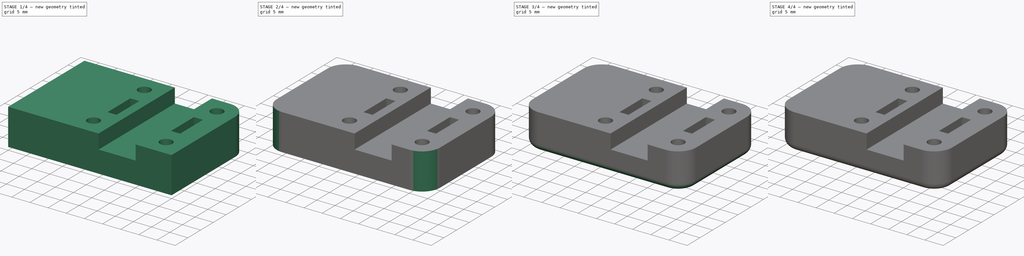
[diagram: build sequence overview — one tinted view per stage of 4, left to right]
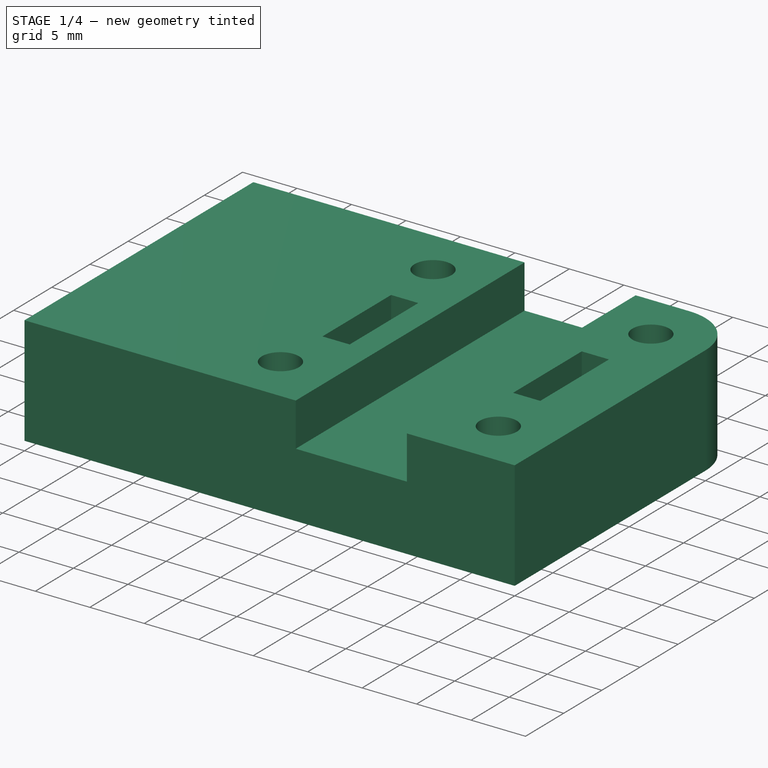
[diagram: stage 1 of 4 — iso view after this stage's code; geometry added in this stage tinted green]
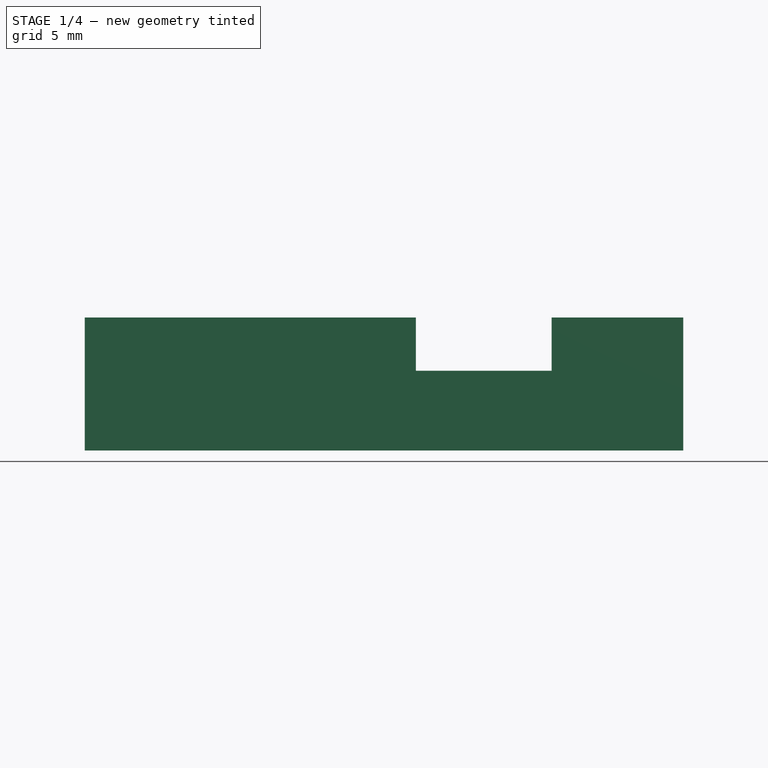
[diagram: stage 1 of 4 — front view after this stage's code; geometry added in this stage tinted green]
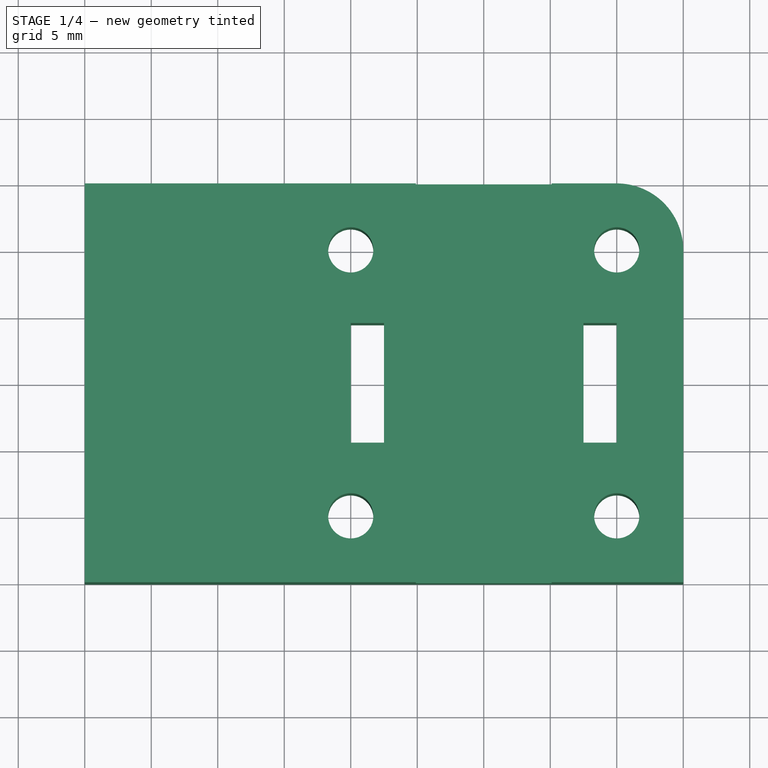
[diagram: stage 1 of 4 — top view after this stage's code; geometry added in this stage tinted green]
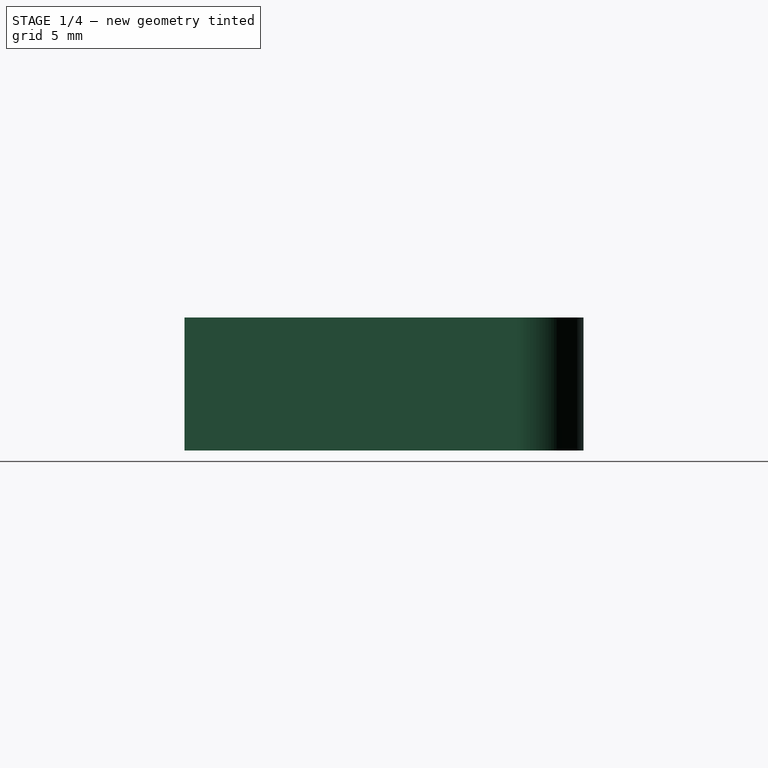
[diagram: stage 1 of 4 — right view after this stage's code; geometry added in this stage tinted green]
FCSTD DOCUMENT  (FreeCAD 0.16R6712 (Git))
Label: BatteryMountV2
License: All rights reserved
LicenseURL: http://en.wikipedia.org/wiki/All_rights_reserved
objects: PartDesign::Fillet×5, PartDesign::Chamfer×4, Sketcher::SketchObject×3, PartDesign::Pocket×2, PartDesign::Pad×1
note: 18 computed .brp shape members not serialized (recipe doc carries the construction recipe); baked Part::Feature solids carry a one-line shape summary decoded from their .brp

FEATURE [Sketcher::SketchObject] Sketch
  sketch-geometry (30):
    g0: LineSegment StartX=-30 StartY=15 StartZ=0 EndX=15 EndY=15 EndZ=0
    g1: LineSegment StartX=15 StartY=15 StartZ=0 EndX=15 EndY=-15 EndZ=0
    g2: LineSegment StartX=15 StartY=-15 StartZ=0 EndX=-30 EndY=-15 EndZ=0
    g3: LineSegment StartX=-30 StartY=-15 StartZ=0 EndX=-30 EndY=15 EndZ=0
    g4: GeomPoint [constr] X=-60.7763 Y=8.62422 Z=0
    g5: GeomPoint [constr] X=-30 Y=0 Z=0
    g6: Circle CenterX=-10 CenterY=10 CenterZ=0 NormalX=0 NormalY=0 NormalZ=1 Radius=1.7
    g7: LineSegment [constr] StartX=-5.1 StartY=15 StartZ=0 EndX=-5.1 EndY=-15 EndZ=0
    g8: LineSegment [constr] StartX=5.1 StartY=15 StartZ=0 EndX=5.1 EndY=-15 EndZ=0
    g9: LineSegment [constr] StartX=-10 StartY=10 StartZ=0 EndX=10 EndY=10 EndZ=0
    g10: LineSegment [constr] StartX=10 StartY=10 StartZ=0 EndX=10 EndY=-10 EndZ=0
    g11: LineSegment [constr] StartX=10 StartY=-10 StartZ=0 EndX=-10 EndY=-10 EndZ=0
    g12: LineSegment [constr] StartX=-10 StartY=-10 StartZ=0 EndX=-10 EndY=10 EndZ=0
    g13: Circle CenterX=-10 CenterY=-10 CenterZ=0 NormalX=0 NormalY=0 NormalZ=1 Radius=1.7
    g14: Circle CenterX=10 CenterY=10 CenterZ=0 NormalX=0 NormalY=0 NormalZ=1 Radius=1.7
    g15: Circle CenterX=10 CenterY=-10 CenterZ=0 NormalX=0 NormalY=0 NormalZ=1 Radius=1.7
    g16: GeomPoint [constr] X=0 Y=10 Z=0
    g17: GeomPoint [constr] X=10 Y=0 Z=0
    g18: LineSegment StartX=-10 StartY=4.5 StartZ=0 EndX=-7.5 EndY=4.5 EndZ=0
    g19: LineSegment StartX=-7.5 StartY=4.5 StartZ=0 EndX=-7.5 EndY=-4.5 EndZ=0
    g20: LineSegment StartX=-7.5 StartY=-4.5 StartZ=0 EndX=-10 EndY=-4.5 EndZ=0
    g21: LineSegment StartX=-10 StartY=-4.5 StartZ=0 EndX=-10 EndY=4.5 EndZ=0
    g22: GeomPoint [constr] X=-7.5 Y=0 Z=0
    g23: LineSegment [constr] StartX=-7.5 StartY=4.5 StartZ=0 EndX=7.5 EndY=4.5 EndZ=0
    g24: LineSegment StartX=7.5 StartY=4.5 StartZ=0 EndX=10 EndY=4.5 EndZ=0
    g25: LineSegment StartX=10 StartY=4.5 StartZ=0 EndX=10 EndY=-4.5 EndZ=0
    g26: LineSegment StartX=10 StartY=-4.5 StartZ=0 EndX=7.5 EndY=-4.5 EndZ=0
    g27: LineSegment StartX=7.5 StartY=-4.5 StartZ=0 EndX=7.5 EndY=4.5 EndZ=0
    g28: LineSegment [constr] StartX=10 StartY=10 StartZ=0 EndX=15 EndY=15 EndZ=0
    g29: GeomPoint [constr] X=0 Y=4.5 Z=0
  constraints (77):
    c: Coincident(g0,g1)
    c: Coincident(g1,g2)
    c: Coincident(g2,g3)
    c: Coincident(g3,g0)
    c: Horizontal(g0)
    c: Horizontal(g2)
    c: Vertical(g1)
    c: Vertical(g3)
    c: PointOnObject(g5,g3)
    c: Symmetric(g0,g2,g5)
    c: PointOnObject(g5,g-1)
    c: PointOnObject(g7,g0)
    c: PointOnObject(g7,g2)
    c: Vertical(g7)
    c: PointOnObject(g8,g0)
    c: PointOnObject(g8,g2)
    c: Vertical(g8)
    c: DistanceX(g7,g8) = 10.2
    c: Coincident(g9,g10)
    c: Coincident(g10,g11)
    c: Coincident(g11,g12)
    c: Coincident(g12,g9)
    c: Horizontal(g9)
    c: Horizontal(g11)
    c: Vertical(g10)
    c: Vertical(g12)
    c: Coincident(g9,g6)
    c: DistanceX(g9,g9) = 20
    c: DistanceY(g10,g10) = 20
    c: Coincident(g13,g11)
    c: Coincident(g14,g9)
    c: Coincident(g15,g10)
    c: Radius(g6) = 1.7
    c: Equal(g6,g14)
    c: Equal(g14,g15)
    c: Equal(g15,g13)
    c: PointOnObject(g16,g9)
    c: Symmetric(g9,g6,g16)
    c: PointOnObject(g16,g-2)
    c: PointOnObject(g17,g10)
    c: Symmetric(g9,g10,g17)
    c: PointOnObject(g17,g-1)
    c: Coincident(g18,g19)
    c: Coincident(g19,g20)
    c: Coincident(g20,g21)
    c: Coincident(g21,g18)
    c: Horizontal(g18)
    c: Horizontal(g20)
    c: Vertical(g19)
    c: Vertical(g21)
    c: DistanceX(g18,g18) = 2.5
    c: DistanceY(g21,g21) = 9
    c: PointOnObject(g22,g19)
    c: Symmetric(g18,g19,g22)
    c: PointOnObject(g22,g-1)
    c: Horizontal(g23)
    c: Coincident(g23,g18)
    c: Coincident(g24,g25)
    c: Coincident(g25,g26)
    c: Coincident(g26,g27)
    c: Coincident(g27,g24)
    c: Horizontal(g24)
    c: Horizontal(g26)
    c: Vertical(g25)
    c: Vertical(g27)
    c: Coincident(g24,g23)
    c: Equal(g24,g18)
    c: Equal(g25,g21)
    c: DistanceY(g1,g1) = 30
    c: Coincident(g28,g9)
    c: Angle(g28) = 0.785398
    c: Coincident(g28,g0)
    c: DistanceX(g2,g11) = 20
    c: PointOnObject(g29,g23)
    c: Symmetric(g18,g23,g29)
    c: PointOnObject(g29,g-2)
    c: DistanceX(g23,g23) = 15
FEATURE [PartDesign::Pad] Pad
  Length = 10
  Length2 = 100
  Sketch = -> Sketch
  Type = 0
FEATURE [Sketcher::SketchObject] Sketch001
  Placement = pos=(0,0,10) rot=(0,0,1;0rad)
  Support = -> Pad [Face18]
  sketch-geometry (6):
    g0: LineSegment StartX=-5.1 StartY=15 StartZ=0 EndX=5.1 EndY=15 EndZ=0
    g1: LineSegment StartX=5.1 StartY=15 StartZ=0 EndX=5.1 EndY=-15 EndZ=0
    g2: LineSegment StartX=5.1 StartY=-15 StartZ=0 EndX=-5.1 EndY=-15 EndZ=0
    g3: LineSegment StartX=-5.1 StartY=-15 StartZ=0 EndX=-5.1 EndY=15 EndZ=0
    g4: GeomPoint [constr] X=-5.1 Y=0 Z=0
    g5: GeomPoint [constr] X=0 Y=-15 Z=0
  constraints (16):
    c: Coincident(g0,g1)
    c: Coincident(g1,g2)
    c: Coincident(g2,g3)
    c: Coincident(g3,g0)
    c: Horizontal(g0)
    c: Horizontal(g2)
    c: Vertical(g1)
    c: Vertical(g3)
    c: PointOnObject(g4,g3)
    c: Symmetric(g0,g2,g4)
    c: PointOnObject(g4,g-1)
    c: PointOnObject(g5,g2)
    c: Symmetric(g2,g1,g5)
    c: PointOnObject(g5,g-2)
    c: DistanceY(g1,g1) = 30
    c: DistanceX(g0,g0) = 10.2
FEATURE [PartDesign::Pocket] Pocket
  Length = 4
  Sketch = -> Sketch001
  Type = 0
FEATURE [PartDesign::Fillet] Fillet
  Base = -> Pocket [Edge2]
  Radius = 5
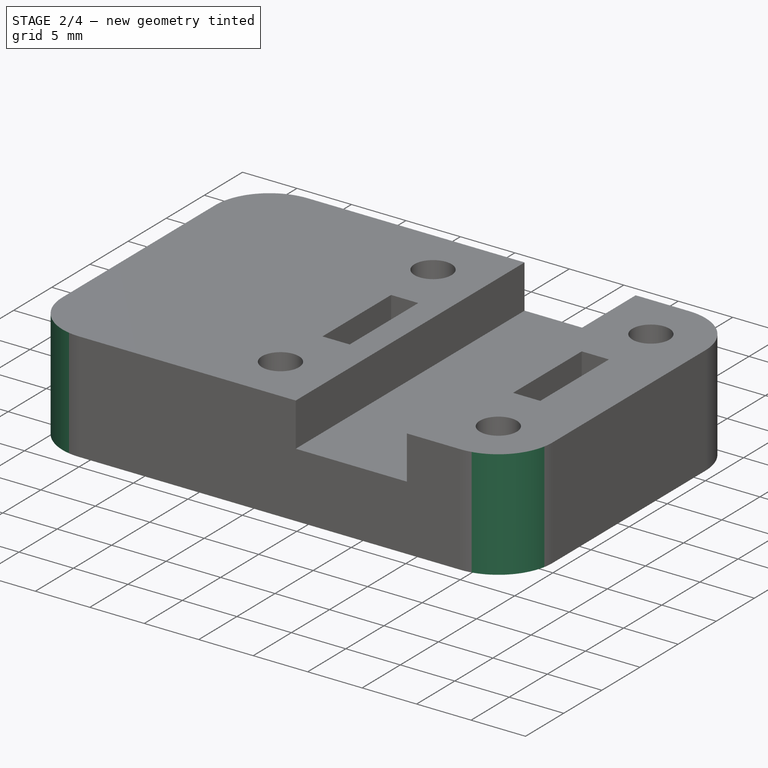
[diagram: stage 2 of 4 — iso view after this stage's code; geometry added in this stage tinted green]
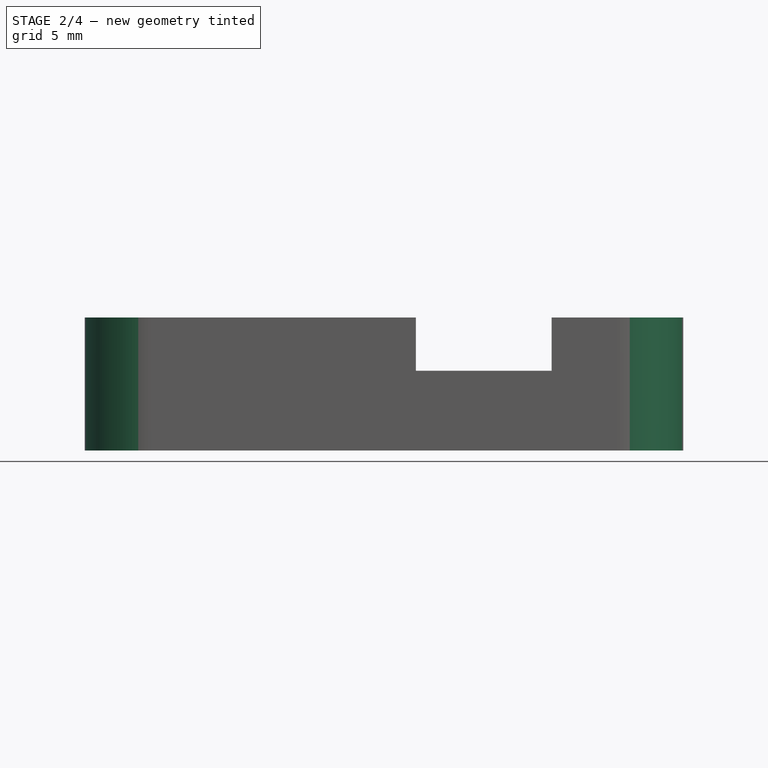
[diagram: stage 2 of 4 — front view after this stage's code; geometry added in this stage tinted green]
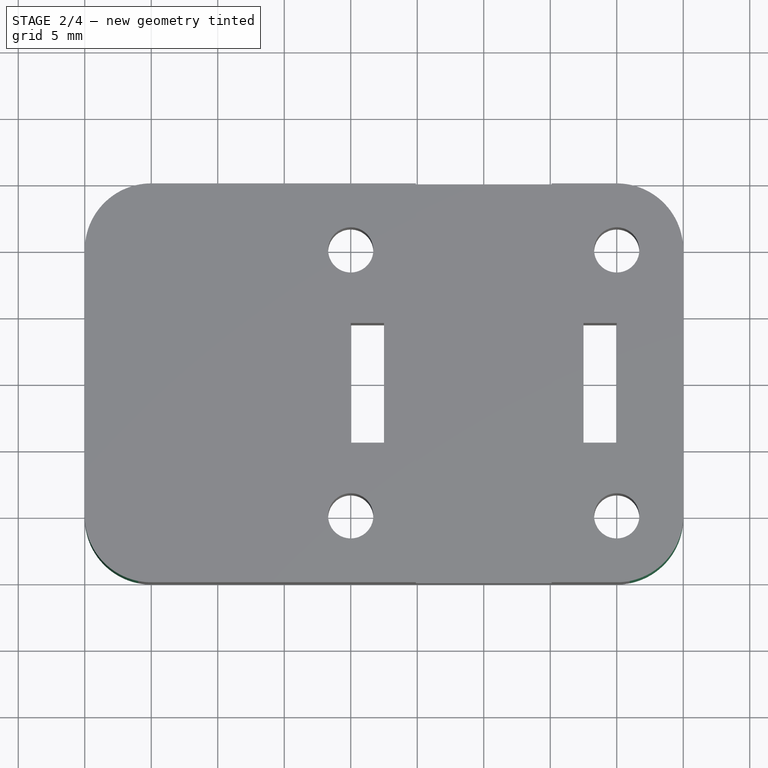
[diagram: stage 2 of 4 — top view after this stage's code; geometry added in this stage tinted green]
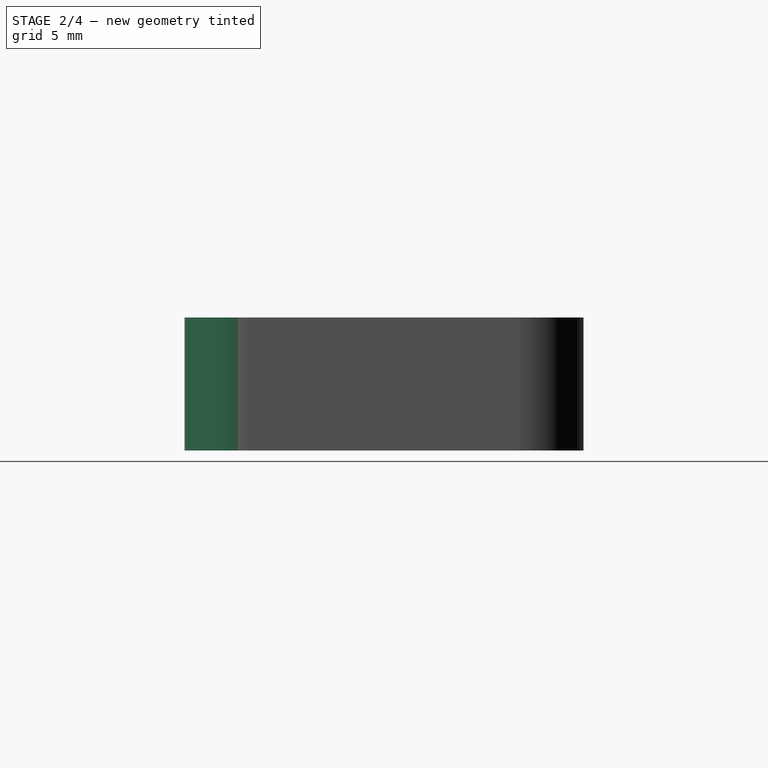
[diagram: stage 2 of 4 — right view after this stage's code; geometry added in this stage tinted green]
FEATURE [PartDesign::Fillet] Fillet001
  Base = -> Fillet [Edge3]
  Radius = 5
FEATURE [PartDesign::Fillet] Fillet002
  Base = -> Fillet001 [Edge54]
  Radius = 5
FEATURE [PartDesign::Fillet] Fillet003
  Base = -> Fillet002 [Edge27]
  Radius = 5
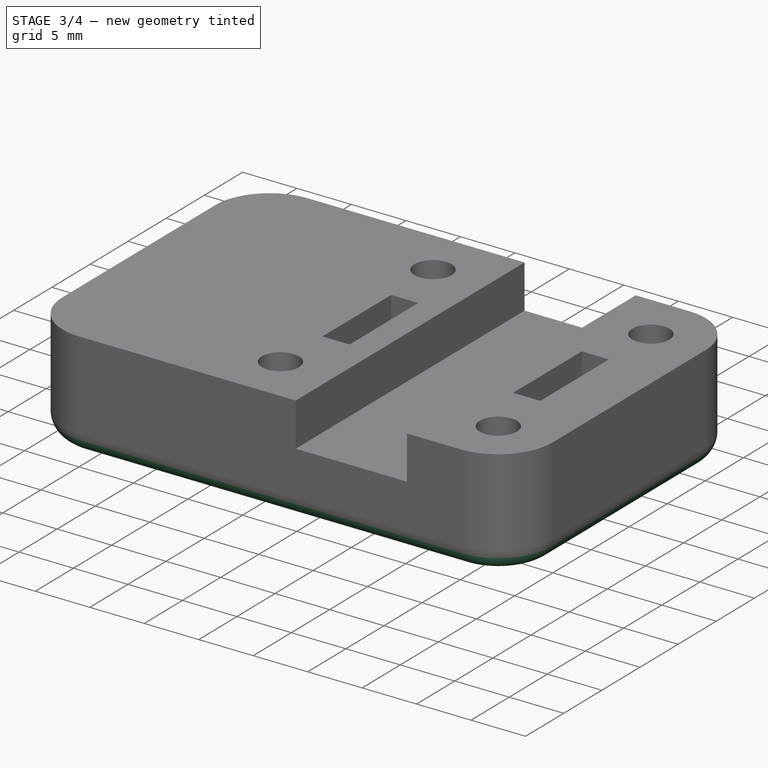
[diagram: stage 3 of 4 — iso view after this stage's code; geometry added in this stage tinted green]
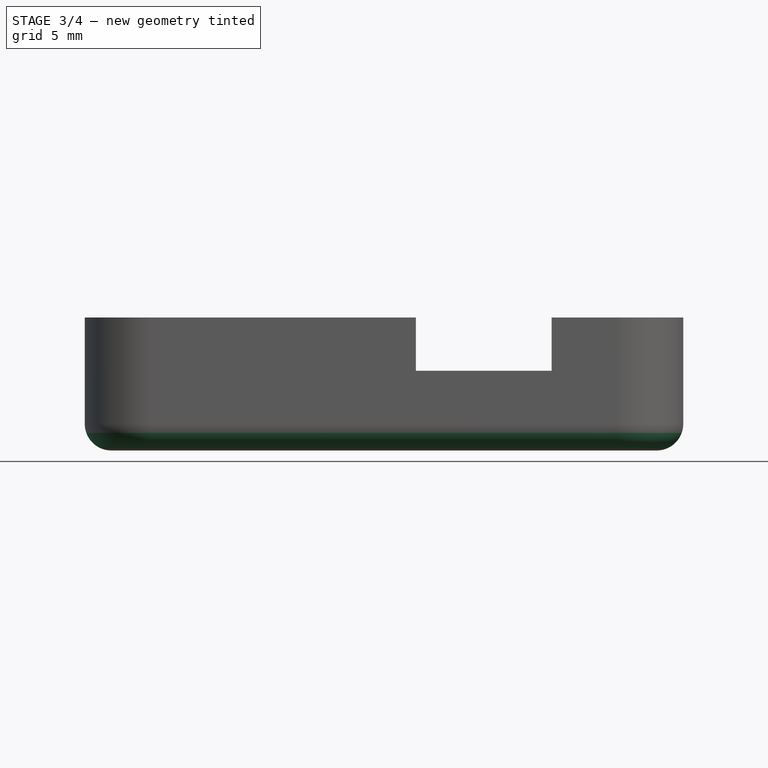
[diagram: stage 3 of 4 — front view after this stage's code; geometry added in this stage tinted green]
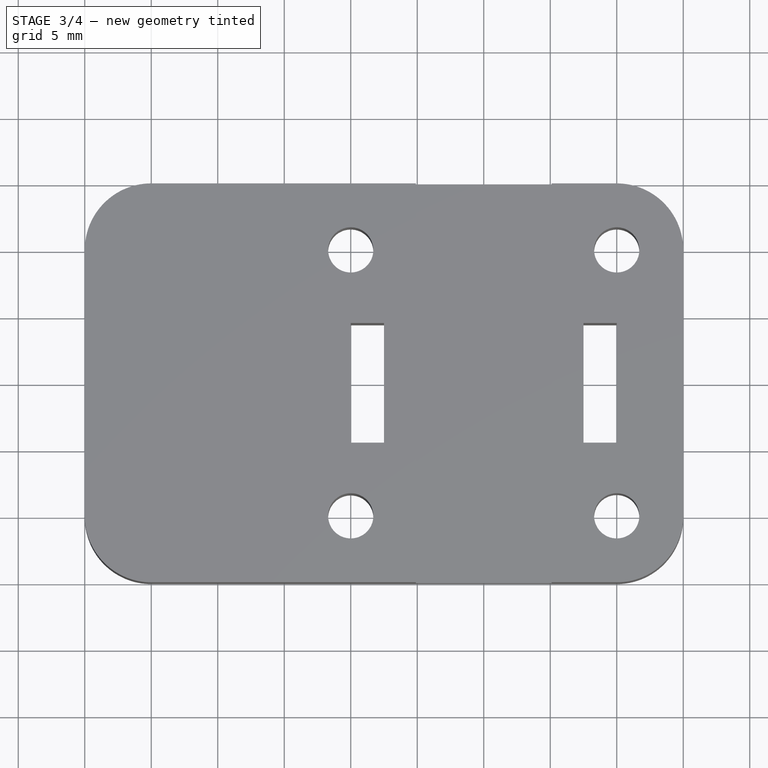
[diagram: stage 3 of 4 — top view after this stage's code; geometry added in this stage tinted green]
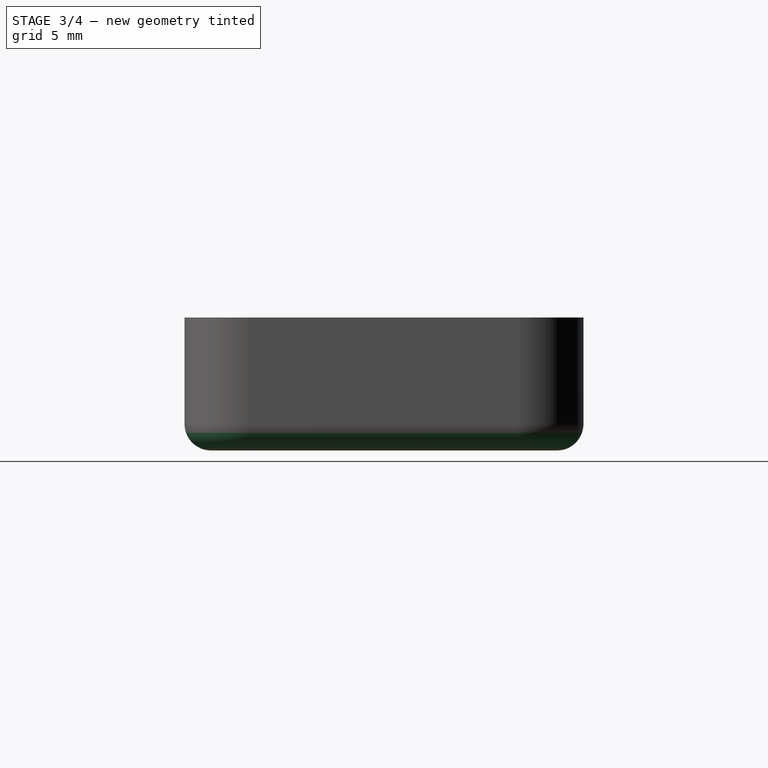
[diagram: stage 3 of 4 — right view after this stage's code; geometry added in this stage tinted green]
FEATURE [PartDesign::Fillet] Fillet004  label="FinalAB"
  Base = -> Fillet003 [Edge8]
  Radius = 2
FEATURE [PartDesign::Chamfer] Chamfer
  Base = -> Fillet004 [Edge17]
  Size = 1.7
FEATURE [Sketcher::SketchObject] Sketch002
  ExternalGeometry = -> [Fillet004]
  Placement = pos=(0,0,0) rot=(1,0,0;3.14159rad)
  Support = -> Fillet004 [Face1]
  sketch-geometry (8):
    g0: LineSegment [constr] StartX=10 StartY=10 StartZ=0 EndX=-10 EndY=10 EndZ=0
    g1: LineSegment [constr] StartX=-10 StartY=10 StartZ=0 EndX=-10 EndY=-10 EndZ=0
    g2: LineSegment [constr] StartX=-10 StartY=-10 StartZ=0 EndX=10 EndY=-10 EndZ=0
    g3: LineSegment [constr] StartX=10 StartY=-10 StartZ=0 EndX=10 EndY=10 EndZ=0
    g4: Circle CenterX=-10 CenterY=10 CenterZ=0 NormalX=0 NormalY=0 NormalZ=1 Radius=2.5
    g5: Circle CenterX=10 CenterY=10 CenterZ=0 NormalX=0 NormalY=0 NormalZ=1 Radius=2.5
    g6: Circle CenterX=10 CenterY=-10 CenterZ=0 NormalX=0 NormalY=0 NormalZ=1 Radius=2.5
    g7: Circle CenterX=-10 CenterY=-10 CenterZ=0 NormalX=0 NormalY=0 NormalZ=1 Radius=2.5
  constraints (18):
    c: Coincident(g0,g1)
    c: Coincident(g1,g2)
    c: Coincident(g2,g3)
    c: Coincident(g3,g0)
    c: Horizontal(g0)
    c: Horizontal(g2)
    c: Vertical(g1)
    c: Vertical(g3)
    c: Coincident(g0,g-3)
    c: Coincident(g1,g-4)
    c: Coincident(g4,g0)
    c: Coincident(g5,g0)
    c: Coincident(g6,g2)
    c: Coincident(g7,g1)
    c: Radius(g5) = 2.5
    c: Equal(g5,g4)
    c: Equal(g4,g7)
    c: Equal(g7,g6)
FEATURE [PartDesign::Pocket] Pocket001  label="FinalB"
  Length = 5.5
  Sketch = -> Sketch002
  Type = 0
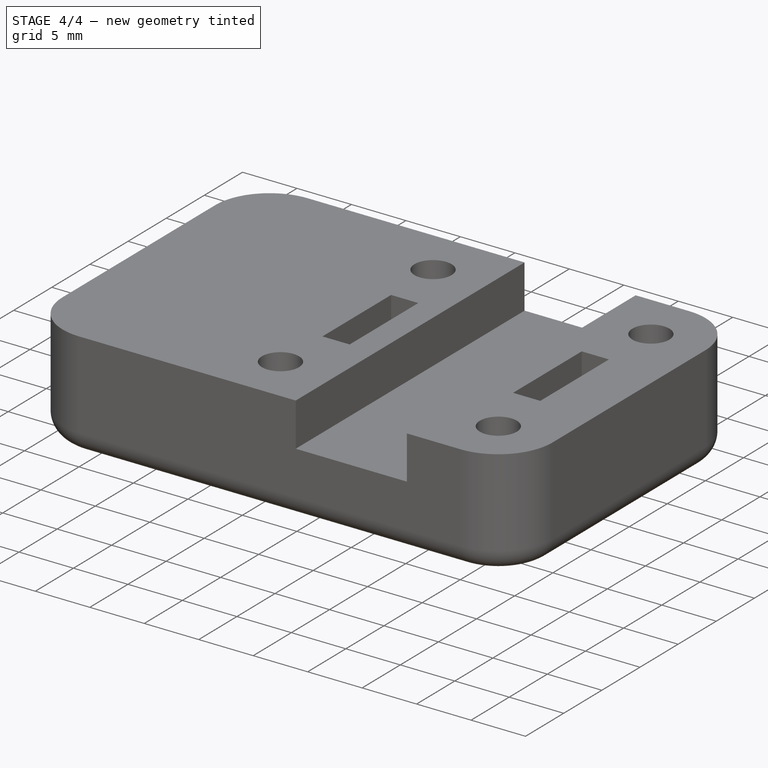
[diagram: stage 4 of 4 — iso view after this stage's code; geometry added in this stage tinted green]
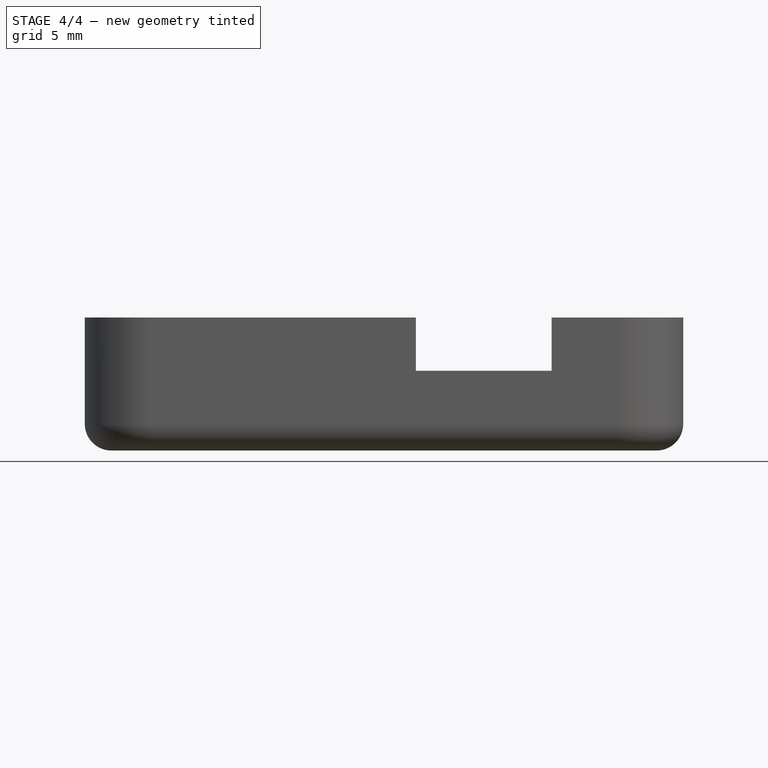
[diagram: stage 4 of 4 — front view after this stage's code; geometry added in this stage tinted green]
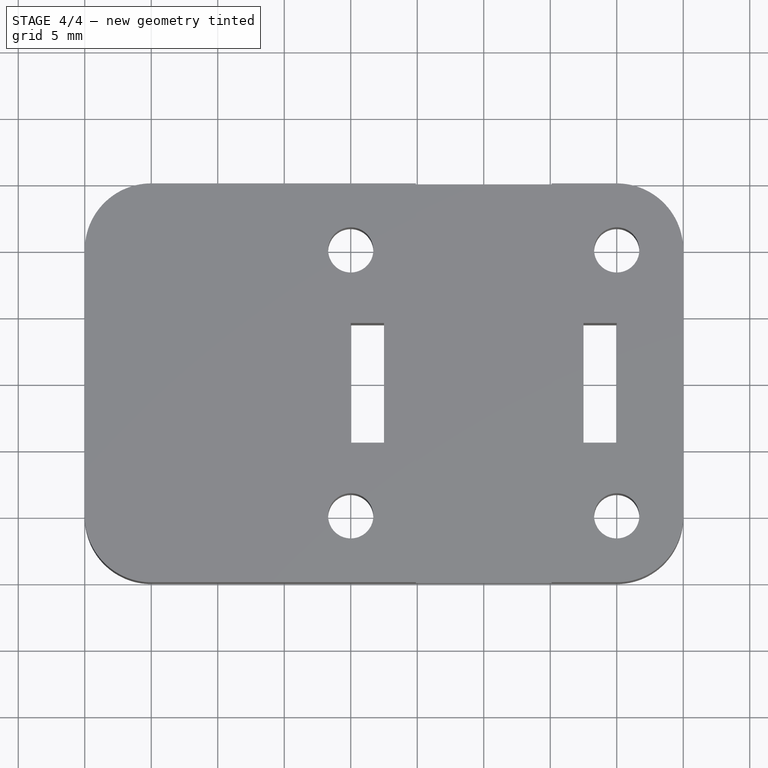
[diagram: stage 4 of 4 — top view after this stage's code; geometry added in this stage tinted green]
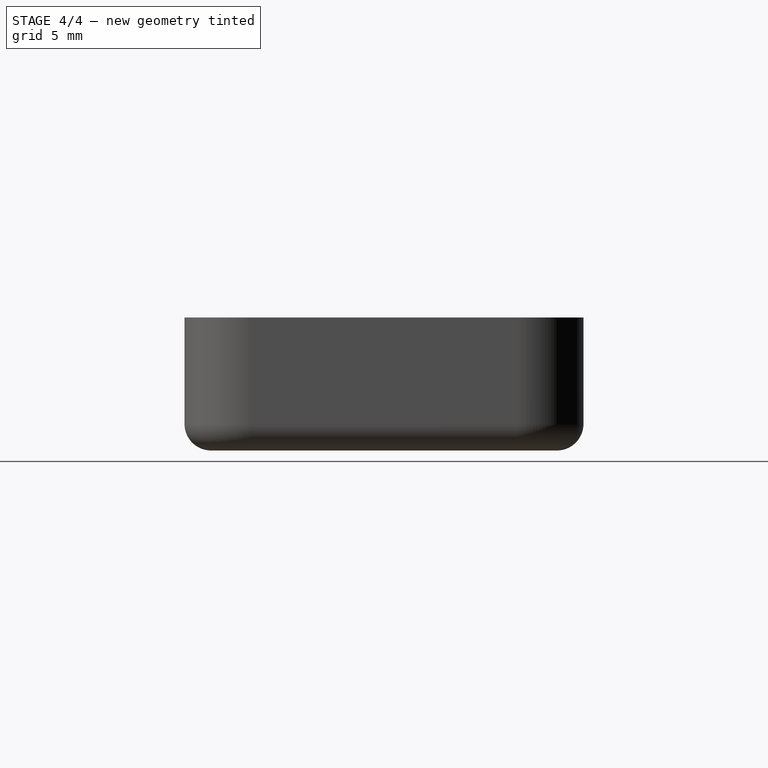
[diagram: stage 4 of 4 — right view after this stage's code; geometry added in this stage tinted green]
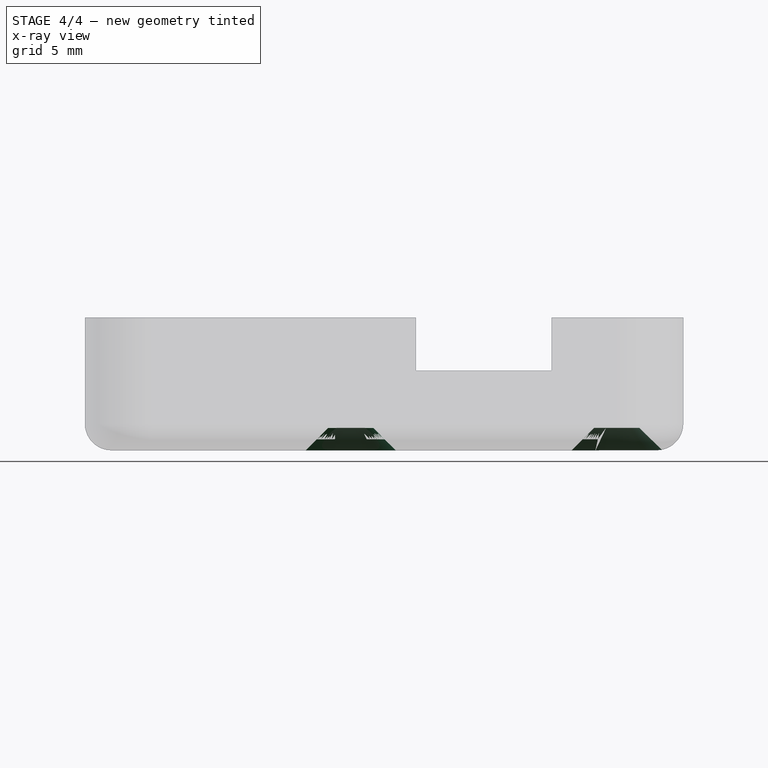
[diagram: stage 4 of 4 — x-ray composite at the front view; earlier geometry ghosted, this stage's added geometry solid]
FEATURE [PartDesign::Chamfer] Chamfer001
  Base = -> Chamfer [Edge17]
  Size = 1.7
FEATURE [PartDesign::Chamfer] Chamfer002
  Base = -> Chamfer001 [Edge17]
  Size = 1.7
FEATURE [PartDesign::Chamfer] Chamfer003  label="FinalA"
  Base = -> Chamfer002 [Edge20]
  Size = 1.7
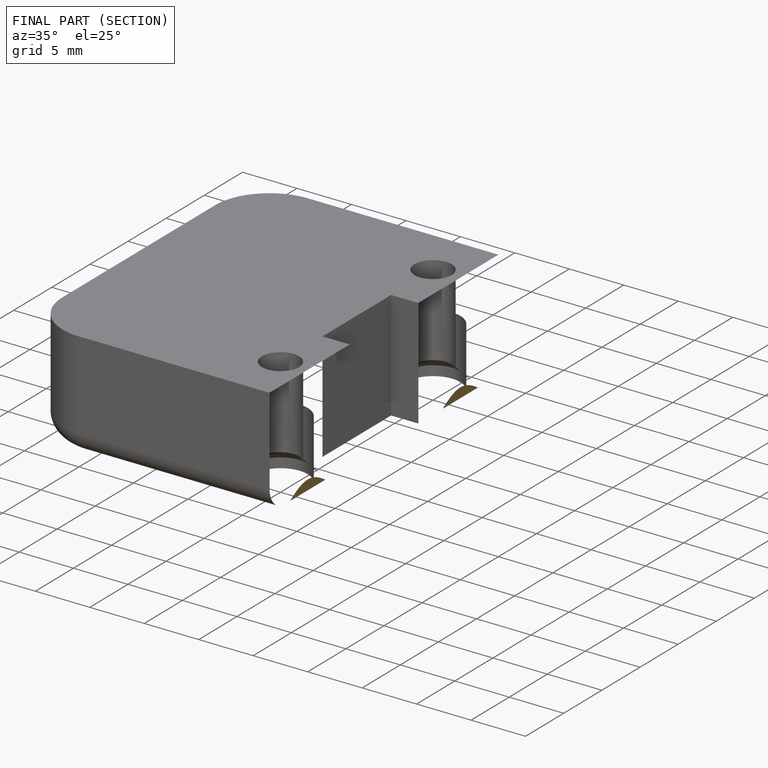
[diagram: finished part — half-section view (interior)]
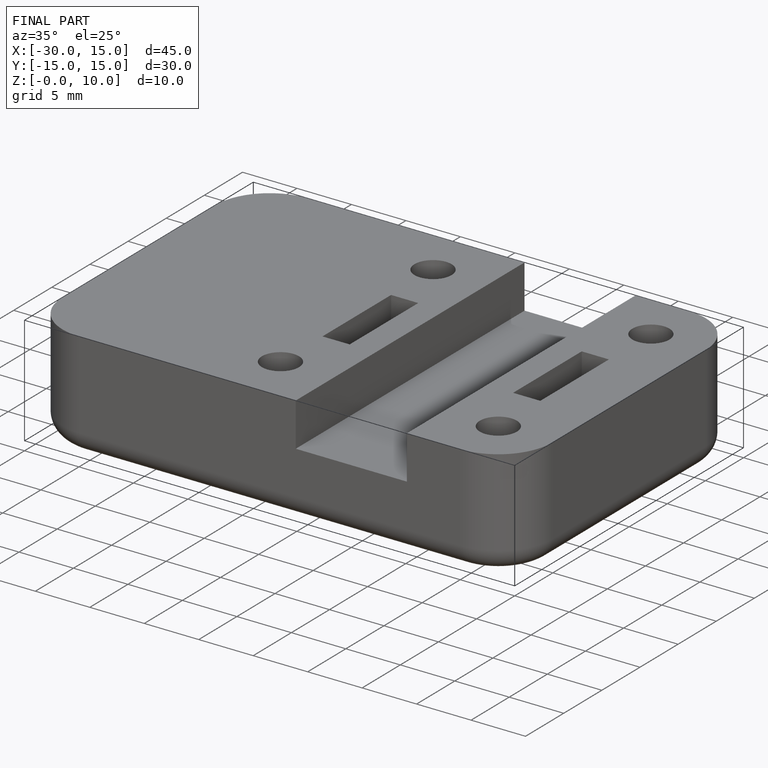
[diagram: finished part — iso view with bounding-box wireframe]
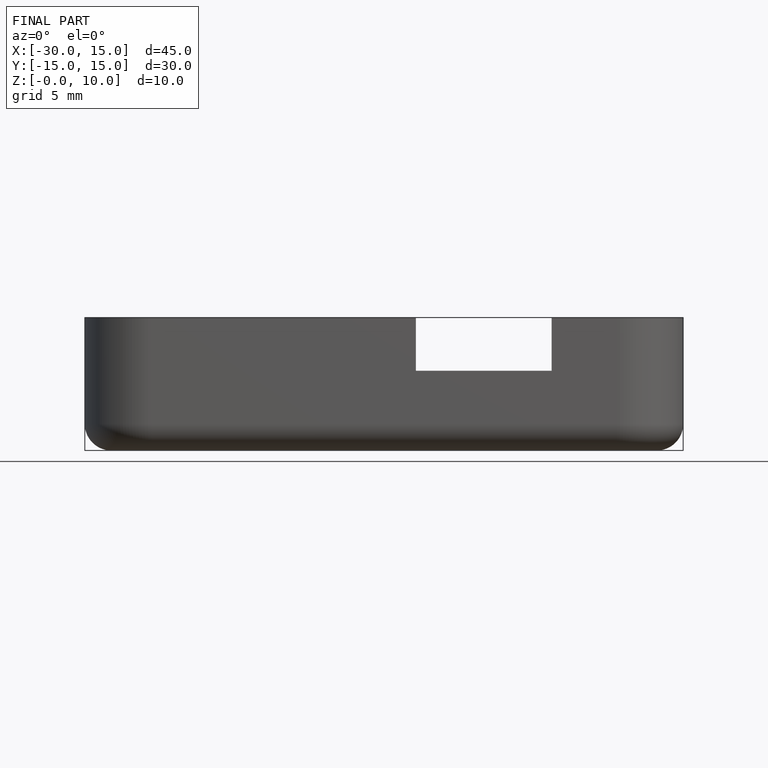
[diagram: finished part — front view with bounding-box wireframe]
